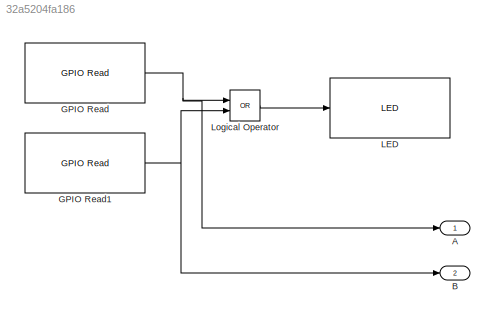
MODEL slx_32a5204fa186
KIND model
CONFIG AbsTol = auto
CONFIG EnableMultiTasking = on
CONFIG FixedStep = 1/40
CONFIG MaxStep = auto
CONFIG MinStep = auto
CONFIG RelTol = 1e-3
CONFIG SampleTimeConstraint = Unconstrained
CONFIG Solver = FixedStepDiscrete
CONFIG SolverName = FixedStepDiscrete
CONFIG StartTime = 0.0
CONFIG StopTime = 10.0
BLOCK [Outport] A
  IconDisplay = Port number
BLOCK [Outport] B
  IconDisplay = Port number
  Port = 2
BLOCK [Reference] GPIO Read  REF=embdlinuxlib/GPIO Read
  Ports = [0, 1]
  SourceBlock = embdlinuxlib/GPIO Read
  SourceType = GPIO Read
BLOCK [Reference] GPIO Read1  REF=embdlinuxlib/GPIO Read
  Ports = [0, 1]
  SourceBlock = embdlinuxlib/GPIO Read
  SourceType = GPIO Read
BLOCK [Reference] LED  REF=embdlinuxlib/LED
  Ports = [1]
  SourceBlock = embdlinuxlib/LED
  SourceType = LED Write
BLOCK [Logic] Logical Operator
  AllPortsSameDT = off
  Operator = OR
  OutDataTypeStr = boolean
  Ports = [2, 1]
NET GPIO Read1:1 -> B:1, Logical Operator:2
NET GPIO Read:1 -> A:1, Logical Operator:1
LINE Logical Operator:1 -> LED:1
note: NET lines group one-source signal fan-out (src -> all destinations, sorted); 1:1 wires keep LINE
